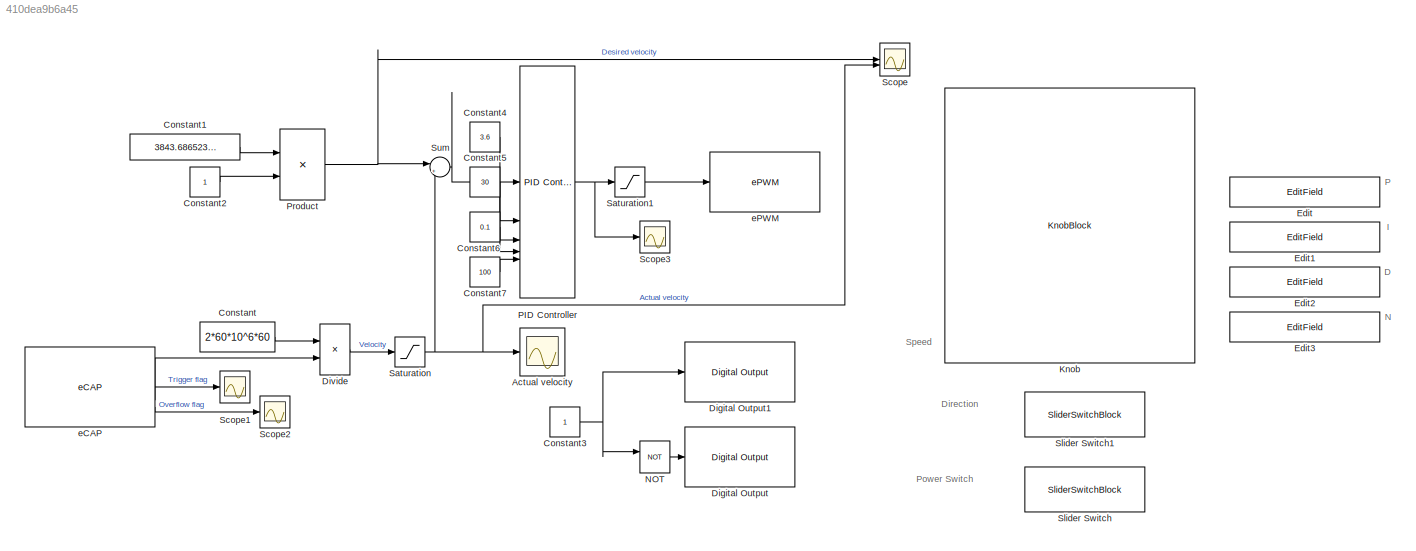
MODEL slx_410dea9b6a45
KIND model
CONFIG AbsTol = auto
CONFIG EnableMultiTasking = on
CONFIG FixedStep = auto
CONFIG MaxStep = auto
CONFIG MinStep = auto
CONFIG RelTol = 1e-3
CONFIG SampleTimeConstraint = Unconstrained
CONFIG SolverName = FixedStepDiscrete
CONFIG StartTime = 0.0
CONFIG StopTime = Inf
BLOCK [Scope] Actual velocity
  Floating = off
  NumInputPorts = 1
  ScopeSpecificationString = Simulink.scopes.TimeScopeBlockCfg('CurrentConfiguration', extmgr.ConfigurationSet(extmgr.Configuration('Core','General UI',true),extmgr.Configuration('Core','Source UI',true),extmgr.Configuration('Sources','WiredSimulink',true),extmgr.Configuration('Visuals','Time Domain',true,'SerializedDisplays',{struct('MinYLimReal','464.24599','MaxYLimReal','1281.27641','YLabelReal','','MinYLimMag','464.24599'...<+1444ch>
BLOCK [Constant] Constant
  Value = 2*60*10^6*60
BLOCK [Constant] Constant1
  Value = 3843.6865234375
BLOCK [Constant] Constant2
BLOCK [Constant] Constant3
BLOCK [Constant] Constant4
  Value = 3.6
BLOCK [Constant] Constant5
  Value = 30
BLOCK [Constant] Constant6
  Value = 0.1
BLOCK [Constant] Constant7
  Value = 100
BLOCK [Reference] Digital Output  REF=c2802xlib/Digital Output
  SourceBlock = c2802xlib/Digital Output
  SourceType = C2802x GPIO Digital Output
  UserDataPersistent = on
BLOCK [Reference] Digital Output1  REF=c2802xlib/Digital Output
  SourceBlock = c2802xlib/Digital Output
  SourceType = C2802x GPIO Digital Output
  UserDataPersistent = on
BLOCK [Product] Divide
  Inputs = */
BLOCK [EditField] Edit
  Alignment = Center
  LabelPosition = Hide
  ShowInitialText = on
BLOCK [EditField] Edit1
  Alignment = Center
  LabelPosition = Hide
  ShowInitialText = on
BLOCK [EditField] Edit2
  Alignment = Center
  LabelPosition = Hide
  ShowInitialText = on
BLOCK [EditField] Edit3
  Alignment = Center
  LabelPosition = Hide
  ShowInitialText = on
BLOCK [KnobBlock] Knob
  ScaleMax = 6000
BLOCK [Logic] NOT
  AllPortsSameDT = off
  IconShape = distinctive
  Operator = NOT
  OutDataTypeStr = boolean
BLOCK [Reference] PID Controller  REF=slpidlib/PID Controller
  SourceBlock = slpidlib/PID Controller
  SourceType = PID 1dof
BLOCK [Product] Product
BLOCK [Saturate] Saturation
  LowerLimit = 0
  UpperLimit = 6000
BLOCK [Saturate] Saturation1
  LowerLimit = 0
  UpperLimit = 15000
BLOCK [Scope] Scope
  Floating = off
  NumInputPorts = 2
  ScopeSpecificationString = Simulink.scopes.TimeScopeBlockCfg('CurrentConfiguration', extmgr.ConfigurationSet(extmgr.Configuration('Core','General UI',true),extmgr.Configuration('Core','Source UI',true),extmgr.Configuration('Sources','WiredSimulink',true,'DataLoggingVariableName','ScopeData1'),extmgr.Configuration('Visuals','Time Domain',true,'SerializedDisplays',{struct('MinYLimReal','1246.22543','MaxYLimReal','6528.19717',...<+1535ch>
BLOCK [Scope] Scope1
  Floating = off
  NumInputPorts = 1
  ScopeSpecificationString = Simulink.scopes.TimeScopeBlockCfg('CurrentConfiguration', extmgr.ConfigurationSet(extmgr.Configuration('Core','General UI',true),extmgr.Configuration('Core','Source UI',true),extmgr.Configuration('Sources','WiredSimulink',true,'DataLoggingVariableName','ScopeData1'),extmgr.Configuration('Visuals','Time Domain',true,'SerializedDisplays',{struct('MinYLimReal','-0.03942','MaxYLimReal','1.05921','YLab...<+1433ch>
BLOCK [Scope] Scope2
  Floating = off
  NumInputPorts = 1
  ScopeSpecificationString = Simulink.scopes.TimeScopeBlockCfg('CurrentConfiguration', extmgr.ConfigurationSet(extmgr.Configuration('Core','General UI',true),extmgr.Configuration('Core','Source UI',true),extmgr.Configuration('Sources','WiredSimulink',true,'DataLoggingVariableName','ScopeData2'),extmgr.Configuration('Visuals','Time Domain',true,'SerializedDisplays',{struct('MinYLimReal','-1.00000','MaxYLimReal','1.00000','YLab...<+1396ch>
BLOCK [Scope] Scope3
  Floating = off
  NumInputPorts = 1
  ScopeSpecificationString = Simulink.scopes.TimeScopeBlockCfg('CurrentConfiguration', extmgr.ConfigurationSet(extmgr.Configuration('Core','General UI',true),extmgr.Configuration('Core','Source UI',true),extmgr.Configuration('Sources','WiredSimulink',true,'DataLoggingVariableName','ScopeData2'),extmgr.Configuration('Visuals','Time Domain',true,'SerializedDisplays',{struct('MinYLimReal','-200336.39844','MaxYLimReal','-159650.2...<+1447ch>
BLOCK [SliderSwitchBlock] Slider Switch
BLOCK [SliderSwitchBlock] Slider Switch1
BLOCK [Sum] Sum
  Inputs = |+-
BLOCK [Reference] eCAP  REF=c280xlib/eCAP
  SourceBlock = c280xlib/eCAP
  SourceType = C28x eCAP
BLOCK [Reference] ePWM  REF=c2802xlib/ePWM
  SourceBlock = c2802xlib/ePWM
  SourceType = ePWM Type 1-4
  UserDataPersistent = on
ANNOTATION (root): D
ANNOTATION (root): Direction
ANNOTATION (root): I
ANNOTATION (root): N
ANNOTATION (root): P
ANNOTATION (root): Power Switch
ANNOTATION (root): Speed
LINE Constant1:1 -> Product:1
LINE Constant2:1 -> Product:2
NET Constant3:1 -> Digital Output1:1, NOT:1
LINE Constant4:1 -> PID Controller:2
LINE Constant5:1 -> PID Controller:3
LINE Constant6:1 -> PID Controller:4
LINE Constant7:1 -> PID Controller:5
LINE Constant:1 -> Divide:1
LINE Divide:1 -> Saturation:1
LINE NOT:1 -> Digital Output:1
NET PID Controller:1 -> Saturation1:1, Scope3:1
NET Product:1 -> Scope:1, Sum:1
LINE Saturation1:1 -> ePWM:1
NET Saturation:1 -> Actual velocity:1, Scope:2, Sum:2
LINE Sum:1 -> PID Controller:1
LINE eCAP:1 -> Divide:2
LINE eCAP:2 -> Scope1:1
LINE eCAP:3 -> Scope2:1
note: NET lines group one-source signal fan-out (src -> all destinations, sorted); 1:1 wires keep LINE
